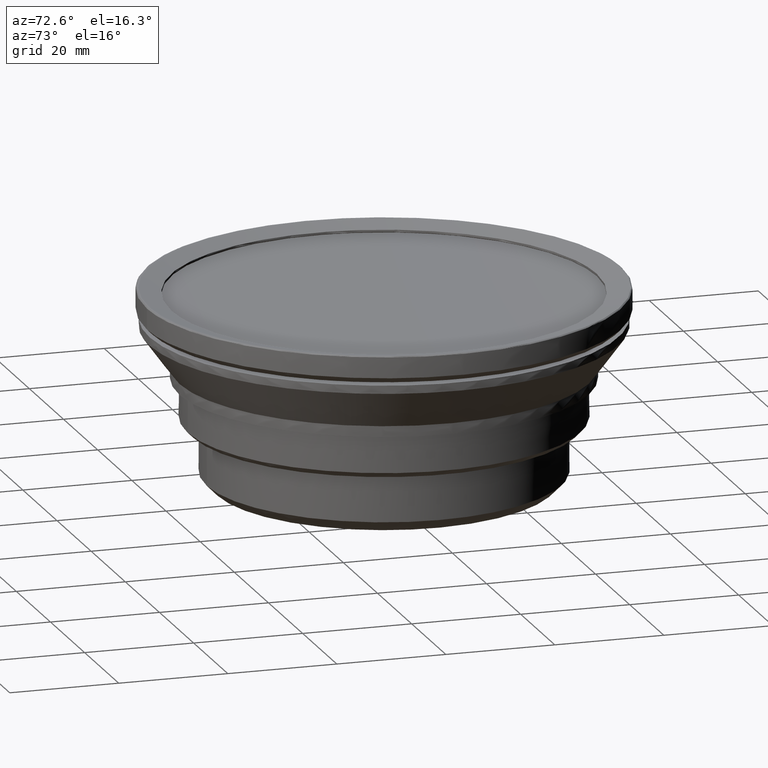
[diagram: clean part render]
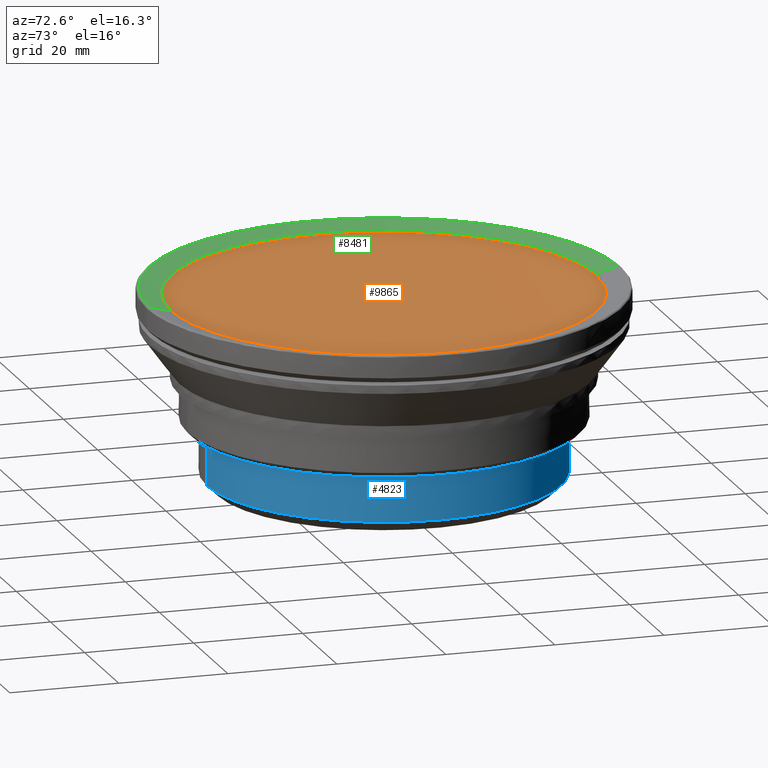
[diagram: same view with three faces highlighted in distinct colors, each labeled with its STEP entity id]
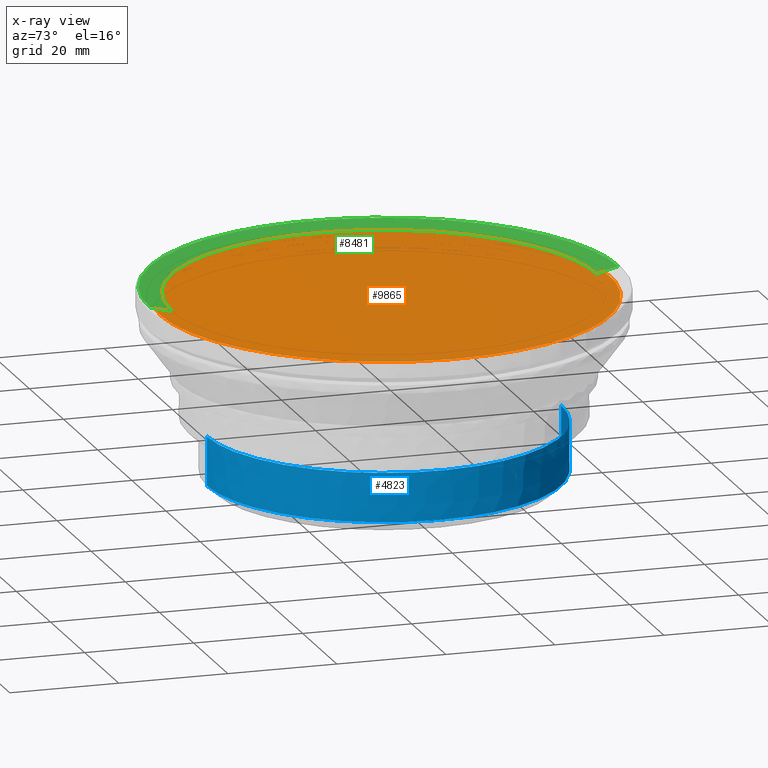
[diagram: x-ray of the same camera — body ghosted, the three highlighted faces saturated]
A machine part, auxiliary view with three faces highlighted in distinct colors.
The next image is the same camera in x-ray (body ghosted, the three faces saturated) — at least one of them is partly hidden behind the body in this view.
Their STEP definitions:

[orange] entity #9865 — the highlighted face is a freeform B-spline surface patch.
#50 = CARTESIAN_POINT ( 'NONE',  ( 30.76901514129435355, -27.18841895865598701, 53.82656779053999685 ) ) ;
#83 = CARTESIAN_POINT ( 'NONE',  ( 22.79313657899829693, -34.11857326369589316, 53.82656779053999685 ) ) ;
#189 = CARTESIAN_POINT ( 'NONE',  ( 34.60675794780898684, -22.19020502219914803, 53.82656779053999685 ) ) ;
#212 = B_SPLINE_CURVE_WITH_KNOTS ( 'NONE', 3,
 ( #10426, #11670, #12693, #11522, #355, #2469, #8157, #2684, #13718, #8303, #8018, #1449, #1379, #9403, #6116, #12764, #4874, #13864 ),
 .UNSPECIFIED., .F., .F.,
 ( 4, 2, 2, 2, 2, 2, 2, 2, 4 ),
 ( 0.000000000000000000, 0.1249999999999999722, 0.2499999999999999445, 0.3749999999999998890, 0.4999999999999998890, 0.6249999999999998890, 0.7499999999999997780, 0.8749999999999998890, 1.000000000000000000 ),
 .UNSPECIFIED. ) ;
#261 = CARTESIAN_POINT ( 'NONE',  ( 34.71158296972780022, 22.62145756266708574, 53.82656779053998264 ) ) ;
#279 = CARTESIAN_POINT ( 'NONE',  ( -4.746460170283159237E-06, -40.99478614046195446, 53.82656779053999685 ) ) ;
#355 = CARTESIAN_POINT ( 'NONE',  ( 16.49843790748052541, 38.15669726416429341, 53.82656779054000395 ) ) ;
#456 = CARTESIAN_POINT ( 'NONE',  ( -32.62914779890632389, 25.55451835437953534, 53.82656779054000395 ) ) ;
#514 = CARTESIAN_POINT ( 'NONE',  ( -10.62403282639644608, -39.65716851187507785, 53.82656779054017449 ) ) ;
#676 = CARTESIAN_POINT ( 'NONE',  ( -38.42477825401626745, 15.39663904086359558, 53.82656779054000395 ) ) ;
#695 = EDGE_CURVE ( 'NONE', #2745, #711, #4837, .T. ) ;
#711 = VERTEX_POINT ( 'NONE', #4632 ) ;
#754 = CARTESIAN_POINT ( 'NONE',  ( 24.09917795596325263, -33.16967251798414651, 53.82651769916909501 ) ) ;
#934 = ORIENTED_EDGE ( 'NONE', *, *, #2680, .T. ) ;
#1084 = CARTESIAN_POINT ( 'NONE',  ( 27.08353393784316054, -30.87987792404358345, 53.82656779053999685 ) ) ;
#1185 = EDGE_CURVE ( 'NONE', #2745, #4150, #10078, .T. ) ;
#1286 = CARTESIAN_POINT ( 'NONE',  ( 39.29142546414301762, -12.33969183123183200, 53.82656779053999685 ) ) ;
#1356 = CARTESIAN_POINT ( 'NONE',  ( 38.46505729415103048, 15.29365754708821967, 53.82656779053998974 ) ) ;
#1379 = CARTESIAN_POINT ( 'NONE',  ( -11.94160513728750850, 39.81871502547285502, 53.82656779054000395 ) ) ;
#1393 = CARTESIAN_POINT ( 'NONE',  ( -4.746460170283159237E-06, -40.99478614046195446, 53.82656779053999685 ) ) ;
#1424 = CARTESIAN_POINT ( 'NONE',  ( 26.71832983949014917, 31.75495485948404806, 53.82650484882209696 ) ) ;
#1449 = CARTESIAN_POINT ( 'NONE',  ( -9.608368097183321410, 40.44515764548852133, 53.82656779053999685 ) ) ;
#1479 = CARTESIAN_POINT ( 'NONE',  ( -34.89083505456193279, 22.36966842421487556, 53.82656779053998974 ) ) ;
#1768 = CARTESIAN_POINT ( 'NONE',  ( -41.26803318072088445, 0.1320643193297101614, 53.82656779054001817 ) ) ;
#2175 = CARTESIAN_POINT ( 'NONE',  ( 31.32099503155227183, -26.57083956019556581, 53.82656779054000395 ) ) ;
#2378 = CARTESIAN_POINT ( 'NONE',  ( 33.26117472437924505, -24.12355954549192916, 53.82656779054000395 ) ) ;
#2469 = CARTESIAN_POINT ( 'NONE',  ( 11.94160313807073592, 39.81870953392401447, 53.82656779053999685 ) ) ;
#2585 = CARTESIAN_POINT ( 'NONE',  ( 36.50807744753923600, 19.57600897534093676, 53.82656779053999685 ) ) ;
#2627 = CARTESIAN_POINT ( 'NONE',  ( -8.532052421285573729, -40.16069909065998900, 53.82656779054008922 ) ) ;
#2641 = CARTESIAN_POINT ( 'NONE',  ( -38.87854818860488137, -13.62291876706323102, 53.82656779053999685 ) ) ;
#2680 = EDGE_CURVE ( 'NONE', #14071, #3978, #11009, .T. ) ;
#2684 = CARTESIAN_POINT ( 'NONE',  ( 4.831873888050529864, 41.28903618630699413, 53.82656779054000395 ) ) ;
#2714 = CARTESIAN_POINT ( 'NONE',  ( -40.20090216818195472, -9.144749678899636081, 53.82656779053999685 ) ) ;
#2745 = VERTEX_POINT ( 'NONE', #754 ) ;
#2785 = CARTESIAN_POINT ( 'NONE',  ( -41.20993764388805403, 2.467847440059192987, 53.82656779053999685 ) ) ;
#2859 = CARTESIAN_POINT ( 'NONE',  ( -41.24405077729769431, 1.689284349313254552, 53.82656779053999685 ) ) ;
#3002 = CARTESIAN_POINT ( 'NONE',  ( -26.63238152425347849, -31.35512526043893899, 53.82656779053999685 ) ) ;
#3103 = FACE_OUTER_BOUND ( 'NONE', #6552, .T. ) ;
#3195 = CARTESIAN_POINT ( 'NONE',  ( 40.96575579409589096, -4.715682453646658168, 53.82656779053999685 ) ) ;
#3811 = CARTESIAN_POINT ( 'NONE',  ( -39.89075038910693394, 10.93707926394320218, 53.82656779054000395 ) ) ;
#3880 = CARTESIAN_POINT ( 'NONE',  ( -32.86433454904939566, 25.24711754455093882, 53.82656779054001106 ) ) ;
#3956 = CARTESIAN_POINT ( 'NONE',  ( -37.17501738668626388, 18.25552880655110499, 53.82656779053999685 ) ) ;
#3978 = VERTEX_POINT ( 'NONE', #4156 ) ;
#4150 = VERTEX_POINT ( 'NONE', #279 ) ;
#4156 = CARTESIAN_POINT ( 'NONE',  ( -24.09672059400854849, -33.16627389058545106, 53.82753289951889997 ) ) ;
#4174 = CARTESIAN_POINT ( 'NONE',  ( -32.96853477949157707, -24.52734086145901315, 53.82656779054001106 ) ) ;
#4362 = CARTESIAN_POINT ( 'NONE',  ( 40.86133172719917894, 6.214337669786536011, 53.82656779053999685 ) ) ;
#4498 = CARTESIAN_POINT ( 'NONE',  ( 41.27119177633078806, 1.535010512785125458, 53.82656779053998974 ) ) ;
#4566 = CARTESIAN_POINT ( 'NONE',  ( 25.32579674011583037, -32.29105785864373956, 53.82656779053998974 ) ) ;
#4632 = CARTESIAN_POINT ( 'NONE',  ( 26.71832983949014917, 31.75495485948404806, 53.82650484882209696 ) ) ;
#4703 = CARTESIAN_POINT ( 'NONE',  ( 34.05191651923081508, 23.59678450763787083, 53.82656779054000395 ) ) ;
#4742 = CARTESIAN_POINT ( 'NONE',  ( -16.74383660257635142, -37.65860330932905953, 53.82656779054029528 ) ) ;
#4816 = CARTESIAN_POINT ( 'NONE',  ( -4.293229102448679058, -40.82682251841941223, 53.82656779054006790 ) ) ;
#4832 = CARTESIAN_POINT ( 'NONE',  ( -36.46743420564787641, 19.65195223537421754, 53.82656779054000395 ) ) ;
#4837 = B_SPLINE_CURVE_WITH_KNOTS ( 'NONE', 3,
 ( #10189, #4566, #1084, #6694, #6556, #11015, #8815, #9020, #12108, #50, #2175, #5458, #12383, #2378, #13480, #11155, #189, #7654, #6831, #5529, #10055, #11288, #1286, #13204, #5732, #8743, #3195, #14376, #5596, #9987, #4498, #14447, #4362, #13276, #12453, #11424, #1356, #9228, #2585, #8064, #261, #4703, #11355, #5805, #10259, #13620, #1424 ),
 .UNSPECIFIED., .F., .F.,
 ( 4, 1, 1, 1, 1, 1, 2, 2, 1, 2, 2, 2, 2, 1, 2, 2, 1, 2, 2, 2, 2, 2, 2, 2, 1, 2, 2, 4 ),
 ( 0.000000000000000000, 0.06249999999999712730, 0.09374999999999569789, 0.1093749999999949762, 0.1171874999999946709, 0.1210937499999945183, 0.1230468749999944766, 0.1249999999999944489, 0.1562499999999946987, 0.1718749999999947820, 0.1874999999999948652, 0.2187499999999950318, 0.2499999999999951705, 0.3124999999999953371, 0.3437499999999954481, 0.3749999999999955591, 0.4374999999999958922, 0.4687499999999960032, 0.4999999999999961142, 0.5624999999999963363, 0.6249999999999965583, 0.6874999999999967804, 0.7499999999999970024, 0.8124999999999973355, 0.8437499999999974465, 0.8593749999999975575, 0.8749999999999977796, 1.000000000000000000 ),
 .UNSPECIFIED. ) ;
#4874 = CARTESIAN_POINT ( 'NONE',  ( -24.86265585061727990, 33.31636021376596091, 53.82656779053998974 ) ) ;
#4904 = CARTESIAN_POINT ( 'NONE',  ( -40.26576762264465259, 9.418759140634820781, 53.82656779053999685 ) ) ;
#4975 = CARTESIAN_POINT ( 'NONE',  ( -29.03850412081694543, 29.66038154957787398, 53.82656779053999685 ) ) ;
#5049 = CARTESIAN_POINT ( 'NONE',  ( -34.02935476362997491, 23.67873146493401748, 53.82656779053999685 ) ) ;
#5123 = CARTESIAN_POINT ( 'NONE',  ( -40.52744860096114365, -7.623268170509639674, 53.82656779054001817 ) ) ;
#5458 = CARTESIAN_POINT ( 'NONE',  ( 32.07519489589020623, -25.67673090409640579, 53.82656779054000395 ) ) ;
#5529 = CARTESIAN_POINT ( 'NONE',  ( 36.96264023627342254, -18.11731143638947472, 53.82656779053999685 ) ) ;
#5596 = CARTESIAN_POINT ( 'NONE',  ( 41.18271257647224814, -2.378635082171363102, 53.82656779053999685 ) ) ;
#5628 = CARTESIAN_POINT ( 'NONE',  ( 5.014816061986943296, -40.79895592669971194, 53.82656779053999685 ) ) ;
#5732 = CARTESIAN_POINT ( 'NONE',  ( 40.15788454173042510, -9.326464312238577747, 53.82656779053999685 ) ) ;
#5805 = CARTESIAN_POINT ( 'NONE',  ( 33.37454739154852490, 24.55848655113810963, 53.82656779053999685 ) ) ;
#5930 = CARTESIAN_POINT ( 'NONE',  ( -40.98631155328924791, -4.536116380028231809, 53.82656779054001106 ) ) ;
#6001 = CARTESIAN_POINT ( 'NONE',  ( -36.68810568161597985, -18.60911377826085555, 53.82656779053999685 ) ) ;
#6116 = CARTESIAN_POINT ( 'NONE',  ( -18.68711644756321633, 37.13386051714407188, 53.82656779053999685 ) ) ;
#6222 = CARTESIAN_POINT ( 'NONE',  ( -40.88761786146384480, -5.312517163813233800, 53.82656779054000395 ) ) ;
#6552 = EDGE_LOOP ( 'NONE', ( #10922, #934, #13770, #8664, #13341 ) ) ;
#6556 = CARTESIAN_POINT ( 'NONE',  ( 29.90794403684508040, -28.12482198612365281, 53.82656779054000395 ) ) ;
#6694 = CARTESIAN_POINT ( 'NONE',  ( 28.99043876546548404, -29.07036358946549726, 53.82656779053999685 ) ) ;
#6831 = CARTESIAN_POINT ( 'NONE',  ( 35.83437651729920503, -20.18022954575119954, 53.82656779053999685 ) ) ;
#7023 = CARTESIAN_POINT ( 'NONE',  ( -30.63889407916643393, 27.94819933798786593, 53.82656779053998264 ) ) ;
#7097 = CARTESIAN_POINT ( 'NONE',  ( -38.00802950023246751, -15.79288577018143158, 53.82656779053999685 ) ) ;
#7242 = CARTESIAN_POINT ( 'NONE',  ( -41.19333772847438979, -2.205434465597222893, 53.82656779053999685 ) ) ;
#7540 = CARTESIAN_POINT ( 'NONE',  ( -32.00976969893456214, -25.74863076584050603, 53.82656779053998974 ) ) ;
#7654 = CARTESIAN_POINT ( 'NONE',  ( 35.43757257181185594, -20.85882551376738903, 53.82656779054000395 ) ) ;
#7827 = CARTESIAN_POINT ( 'NONE',  ( 15.23216568712000019, -38.19134567740000819, 53.82656779053999685 ) ) ;
#8018 = CARTESIAN_POINT ( 'NONE',  ( -4.831874900321857069, 41.28904194178949894, 53.82656779053999685 ) ) ;
#8064 = CARTESIAN_POINT ( 'NONE',  ( 35.32913291091411878, 21.61856113637002608, 53.82656779053999685 ) ) ;
#8157 = CARTESIAN_POINT ( 'NONE',  ( 9.608369111870841195, 40.44516340054419601, 53.82656779053999685 ) ) ;
#8185 = EDGE_CURVE ( 'NONE', #4150, #3978, #11554, .T. ) ;
#8188 = CARTESIAN_POINT ( 'NONE',  ( -41.25796184962553070, -0.6451585011854502616, 53.82656779054001106 ) ) ;
#8303 = CARTESIAN_POINT ( 'NONE',  ( -2.425233386571195027, 41.49999707808787974, 53.82656779054000395 ) ) ;
#8334 = CARTESIAN_POINT ( 'NONE',  ( -40.84106259548499196, 6.350511352648584129, 53.82656779054000395 ) ) ;
#8360 = CARTESIAN_POINT ( 'NONE',  ( 42.92401824781999409, 43.14999999999999858, 53.82656779053999685 ) ) ;
#8664 = ORIENTED_EDGE ( 'NONE', *, *, #1185, .F. ) ;
#8743 = CARTESIAN_POINT ( 'NONE',  ( 40.66085005702726107, -7.036927806837174337, 53.82656779054000395 ) ) ;
#8815 = CARTESIAN_POINT ( 'NONE',  ( 30.58034611556598037, -27.39782259284412191, 53.82656779054001106 ) ) ;
#8917 = CARTESIAN_POINT ( 'NONE',  ( 19.92395318445471730, -35.95468362186290534, 53.82656779054000395 ) ) ;
#9020 = CARTESIAN_POINT ( 'NONE',  ( 30.67528020718226145, -27.29269102303469197, 53.82656779053999685 ) ) ;
#9051 = CARTESIAN_POINT ( 'NONE',  ( 1.614359345709573734, -40.99997512879678396, 53.82656779053999685 ) ) ;
#9198 = CARTESIAN_POINT ( 'NONE',  ( -20.61669220706138361, -35.68124095516967031, 53.82656779054025264 ) ) ;
#9228 = CARTESIAN_POINT ( 'NONE',  ( 37.21300304666395675, 18.17634042802090022, 53.82656779054001106 ) ) ;
#9362 = CARTESIAN_POINT ( 'NONE',  ( -35.57443367553435110, -20.67146091491387239, 53.82656779054001106 ) ) ;
#9403 = CARTESIAN_POINT ( 'NONE',  ( -16.49843590595870779, 38.15669177345624519, 53.82656779053999685 ) ) ;
#9457 = CARTESIAN_POINT ( 'NONE',  ( 42.92401824781999409, -42.64999999999999858, 53.82656779053999685 ) ) ;
#9865 = ADVANCED_FACE ( 'NONE', ( #3103 ), #13322, .F. ) ;
#9987 = CARTESIAN_POINT ( 'NONE',  ( 41.28932569508526029, -0.03080847232725254098, 53.82656779054000395 ) ) ;
#10055 = CARTESIAN_POINT ( 'NONE',  ( 37.96728249656976573, -16.00411975487142158, 53.82656779053999685 ) ) ;
#10078 = B_SPLINE_CURVE_WITH_KNOTS ( 'NONE', 3,
 ( #13376, #83, #8917, #7827, #12483, #5628, #9051, #10087 ),
 .UNSPECIFIED., .F., .F.,
 ( 4, 1, 1, 1, 1, 4 ),
 ( 0.000000000000000000, 0.1879999983678665720, 0.3959999994571092308, 0.6040000005447602183, 0.8120000016324119274, 1.000000000000000000 ),
 .UNSPECIFIED. ) ;
#10087 = CARTESIAN_POINT ( 'NONE',  ( -4.746460170283159237E-06, -40.99478614046195446, 53.82656779053999685 ) ) ;
#10189 = CARTESIAN_POINT ( 'NONE',  ( 24.09917795596325263, -33.16967251798414651, 53.82651769916909501 ) ) ;
#10259 = CARTESIAN_POINT ( 'NONE',  ( 31.26005656955054590, 27.41410513000151283, 53.82656779053999685 ) ) ;
#10426 = CARTESIAN_POINT ( 'NONE',  ( 26.71832983949014917, 31.75495485948404806, 53.82650484882209696 ) ) ;
#10629 = CARTESIAN_POINT ( 'NONE',  ( -42.92209784655999982, -42.64999999999999858, 53.82656779053999685 ) ) ;
#10676 = CARTESIAN_POINT ( 'NONE',  ( -37.69783299243977126, -16.50679688636806119, 53.82656779053999685 ) ) ;
#10922 = ORIENTED_EDGE ( 'NONE', *, *, #12131, .T. ) ;
#11009 = B_SPLINE_CURVE_WITH_KNOTS ( 'NONE', 3,
 ( #11773, #13967, #4975, #7023, #11479, #12795, #456, #3880, #5049, #1479, #4832, #3956, #676, #12868, #3811, #4904, #8334, #12724, #2785, #2859, #1768, #8188, #7242, #11701, #5930, #6222, #5123, #2714, #12653, #2641, #7097, #10676, #11553, #6001, #9362, #13821, #4174, #7540, #11921, #12073, #3002, #11996 ),
 .UNSPECIFIED., .F., .F.,
 ( 4, 2, 1, 2, 2, 2, 2, 2, 2, 2, 2, 2, 2, 2, 2, 2, 2, 2, 1, 2, 2, 4 ),
 ( 0.000000000000000000, 0.06249999999999983347, 0.09374999999999969469, 0.1093749999999996392, 0.1249999999999995837, 0.1874999999999995559, 0.2499999999999995559, 0.3124999999999995559, 0.3749999999999995559, 0.4374999999999995559, 0.4687499999999995004, 0.4999999999999995559, 0.5312499999999995559, 0.5624999999999995559, 0.6249999999999996669, 0.6874999999999996669, 0.7187499999999996669, 0.7499999999999995559, 0.8124999999999995559, 0.8437499999999996669, 0.8749999999999996669, 1.000000000000000000 ),
 .UNSPECIFIED. ) ;
#11015 = CARTESIAN_POINT ( 'NONE',  ( 30.35770988692699390, -27.64185507543948361, 53.82656779053999685 ) ) ;
#11155 = CARTESIAN_POINT ( 'NONE',  ( 34.17204304507730228, -22.84427616662447846, 53.82656779053999685 ) ) ;
#11288 = CARTESIAN_POINT ( 'NONE',  ( 38.78649256884929031, -13.81551771511892746, 53.82656779053998264 ) ) ;
#11355 = CARTESIAN_POINT ( 'NONE',  ( 33.60277966127487304, 24.24087591954588561, 53.82656779053999685 ) ) ;
#11424 = CARTESIAN_POINT ( 'NONE',  ( 39.00656527263083007, 13.82315717171544023, 53.82656779053998264 ) ) ;
#11479 = CARTESIAN_POINT ( 'NONE',  ( -31.41298004778493436, 27.07196798343740696, 53.82656779054001106 ) ) ;
#11522 = CARTESIAN_POINT ( 'NONE',  ( 18.68709898581408879, 37.13386387053541426, 53.82656779053999685 ) ) ;
#11553 = CARTESIAN_POINT ( 'NONE',  ( -37.03739275351714610, -17.91579668236911260, 53.82656779054001106 ) ) ;
#11554 = B_SPLINE_CURVE_WITH_KNOTS ( 'NONE', 3,
 ( #1393, #12710, #4816, #2627, #514, #4742, #9198, #13880 ),
 .UNSPECIFIED., .F., .F.,
 ( 4, 2, 2, 4 ),
 ( 0.000000000000000000, 0.2499999999999999445, 0.4999999999999998890, 1.000000000000000000 ),
 .UNSPECIFIED. ) ;
#11670 = CARTESIAN_POINT ( 'NONE',  ( 24.86263015036188406, 33.31638183782082052, 53.82656779054000395 ) ) ;
#11701 = CARTESIAN_POINT ( 'NONE',  ( -41.13900766920713892, -2.983626041365775805, 53.82656779053999685 ) ) ;
#11773 = CARTESIAN_POINT ( 'NONE',  ( -26.71824947981185261, 31.75486084565024569, 53.82684078147949691 ) ) ;
#11921 = CARTESIAN_POINT ( 'NONE',  ( -31.51325047176885263, -26.34546514310826737, 53.82656779053999685 ) ) ;
#11996 = CARTESIAN_POINT ( 'NONE',  ( -24.09672059400854849, -33.16627389058545106, 53.82753289951889997 ) ) ;
#12073 = CARTESIAN_POINT ( 'NONE',  ( -28.93162485918410098, -29.27573254527623092, 53.82656779054000395 ) ) ;
#12108 = CARTESIAN_POINT ( 'NONE',  ( 30.73846261605016394, -27.22248192757824370, 53.82656779054001106 ) ) ;
#12131 = EDGE_CURVE ( 'NONE', #711, #14071, #212, .T. ) ;
#12383 = CARTESIAN_POINT ( 'NONE',  ( 32.79179596560064169, -24.74927446058826419, 53.82656779054000395 ) ) ;
#12453 = CARTESIAN_POINT ( 'NONE',  ( 39.92223926392175315, 10.81993299623396965, 53.82656779053999685 ) ) ;
#12483 = CARTESIAN_POINT ( 'NONE',  ( 10.12522885193999933, -39.85069004254000191, 53.82656779053999685 ) ) ;
#12653 = CARTESIAN_POINT ( 'NONE',  ( -39.37538816876707415, -12.14805159224696851, 53.82656779054001106 ) ) ;
#12693 = CARTESIAN_POINT ( 'NONE',  ( 22.88528430538247704, 34.70440550930028678, 53.82656779054000395 ) ) ;
#12710 = CARTESIAN_POINT ( 'NONE',  ( -2.146824061205016232, -40.99152887540680723, 53.82656779054003238 ) ) ;
#12724 = CARTESIAN_POINT ( 'NONE',  ( -41.04123244856506858, 4.803395939559512051, 53.82656779053999685 ) ) ;
#12764 = CARTESIAN_POINT ( 'NONE',  ( -22.88526684150969714, 34.70440886392052704, 53.82656779053999685 ) ) ;
#12795 = CARTESIAN_POINT ( 'NONE',  ( -32.14790250056902465, 26.16552625575377533, 53.82656779054000395 ) ) ;
#12868 = CARTESIAN_POINT ( 'NONE',  ( -38.96733604950848928, 13.93486063464370872, 53.82656779053999685 ) ) ;
#12892 = CARTESIAN_POINT ( 'NONE',  ( -42.92209784655999982, 43.14999999999999858, 53.82656779053999685 ) ) ;
#13204 = CARTESIAN_POINT ( 'NONE',  ( 39.52287917428148489, -11.59486158578055637, 53.82656779053998974 ) ) ;
#13220 = CARTESIAN_POINT ( 'NONE',  ( -26.71824947981185261, 31.75486084565024569, 53.82684078147949691 ) ) ;
#13276 = CARTESIAN_POINT ( 'NONE',  ( 40.29306817464890145, 9.298577037524525579, 53.82656779053999685 ) ) ;
#13322 = B_SPLINE_SURFACE_WITH_KNOTS ( 'NONE', 1, 1, ( 
 ( #8360, #12892 ),
 ( #9457, #10629 ) ),
 .UNSPECIFIED., .F., .F., .F.,
 ( 2, 2 ),
 ( 2, 2 ),
 ( -43.14999999999999858, 42.64999999999999858 ),
 ( -42.92401824782000119, 42.92209784655999982 ),
 .UNSPECIFIED. ) ;
#13341 = ORIENTED_EDGE ( 'NONE', *, *, #695, .T. ) ;
#13376 = CARTESIAN_POINT ( 'NONE',  ( 24.09917795596325263, -33.16967251798414651, 53.82651769916909501 ) ) ;
#13480 = CARTESIAN_POINT ( 'NONE',  ( 33.49100930488437911, -23.80795496857663451, 53.82656779053999685 ) ) ;
#13620 = CARTESIAN_POINT ( 'NONE',  ( 29.11964147152315974, 29.70717554164648178, 53.82656779054001106 ) ) ;
#13718 = CARTESIAN_POINT ( 'NONE',  ( 2.425233387798013229, 41.50000292191214157, 53.82656779054000395 ) ) ;
#13770 = ORIENTED_EDGE ( 'NONE', *, *, #8185, .F. ) ;
#13821 = CARTESIAN_POINT ( 'NONE',  ( -34.35260313120141973, -22.65700395820663005, 53.82656779053999685 ) ) ;
#13864 = CARTESIAN_POINT ( 'NONE',  ( -26.71824947981185261, 31.75486084565024569, 53.82684078147949691 ) ) ;
#13880 = CARTESIAN_POINT ( 'NONE',  ( -24.09672059400854849, -33.16627389058545106, 53.82753289951889997 ) ) ;
#13967 = CARTESIAN_POINT ( 'NONE',  ( -27.90887243193494882, 30.73971898884106224, 53.82656779053998974 ) ) ;
#14071 = VERTEX_POINT ( 'NONE', #13220 ) ;
#14376 = CARTESIAN_POINT ( 'NONE',  ( 41.12501300142426430, -3.161139140899840605, 53.82656779054000395 ) ) ;
#14447 = CARTESIAN_POINT ( 'NONE',  ( 41.05691747784177892, 4.661835872092768618, 53.82656779054000395 ) ) ;

[blue] entity #4823 — the highlighted face is a freeform B-spline surface patch.
#39 = CARTESIAN_POINT ( 'NONE',  ( 27.91171790901000094, 16.90393722155000233, 31.20656779053999941 ) ) ;
#110 = CARTESIAN_POINT ( 'NONE',  ( -2.040691884703000003, 32.43586867392000528, 24.96656779054000097 ) ) ;
#140 = CARTESIAN_POINT ( 'NONE',  ( 17.31958849936999911, -27.65572176527000181, 22.02656779053999969 ) ) ;
#177 = CARTESIAN_POINT ( 'NONE',  ( 3.022278568777000185, 32.49112027468000008, 21.84656779053999998 ) ) ;
#206 = CARTESIAN_POINT ( 'NONE',  ( 31.74678835643999975, 7.546424274051000580, 22.02656779053999969 ) ) ;
#248 = CARTESIAN_POINT ( 'NONE',  ( 12.82494975472999954, 30.00546198078999893, 31.20656779053999941 ) ) ;
#320 = CARTESIAN_POINT ( 'NONE',  ( 27.91171790901000094, -16.90393722155000233, 21.84656779053999998 ) ) ;
#389 = CARTESIAN_POINT ( 'NONE',  ( -0.3585284210782999637, -32.54170142849999792, 24.96656779054000097 ) ) ;
#435 = CARTESIAN_POINT ( 'NONE',  ( 2.133997235392912639, -32.50000000000000000, 31.02656779054000324 ) ) ;
#506 = CARTESIAN_POINT ( 'NONE',  ( 2.133963577923777777, 32.50000000000000000, 31.02656779053999614 ) ) ;
#531 = B_SPLINE_SURFACE_WITH_KNOTS ( 'NONE', 3, 3, ( 
 ( #2366, #13536, #110, #8052 ),
 ( #11276, #11210, #9148, #10111 ),
 ( #12510, #7917, #9076, #177 ),
 ( #9008, #12371, #4621, #8943 ),
 ( #248, #1071, #4555, #13401 ),
 ( #8872, #13468, #3461, #5584 ),
 ( #2504, #2230, #12237, #6819 ),
 ( #6682, #11143, #5516, #7983 ),
 ( #39, #10045, #4487, #1274 ),
 ( #3395, #7851, #5720, #6956 ),
 ( #12305, #9973, #12441, #3527 ),
 ( #2301, #3328, #1209, #1344 ),
 ( #6751, #5652, #6886, #13333 ),
 ( #13608, #14434, #11343, #7782 ),
 ( #4420, #5794, #10176, #10247 ),
 ( #3598, #1907, #8471, #320 ),
 ( #10389, #9217, #1834, #5863 ),
 ( #13680, #13079, #10317, #11835 ),
 ( #6212, #14102, #3068, #3669 ),
 ( #14178, #9639, #2848, #11412 ),
 ( #4762, #5112, #10814, #12856 ),
 ( #4089, #2920, #1412, #8121 ),
 ( #5935, #11763, #389, #9714 ),
 ( #4838, #12582, #8545, #9566 ) ),
 .UNSPECIFIED., .F., .F., .F.,
 ( 4, 1, 1, 1, 1, 1, 1, 1, 1, 1, 1, 1, 1, 1, 1, 1, 1, 1, 1, 1, 1, 4 ),
 ( 4, 4 ),
 ( -3.204424506661999850, -3.048840870483999765, -2.893257234306000125, -2.737673598128000041, -2.582089961949999957, -2.426506325772999961, -2.270922689594999877, -2.115339053417000237, -1.959755417238999931, -1.804171781061999935, -1.648588144884000073, -1.493004508705999989, -1.337420872528000126, -1.181837236350000042, -1.026253600173000047, -0.8706699639949000424, -0.7150863278171000204, -0.5595026916392999983, -0.4039190554615000317, -0.2483354192838000130, -0.09275178310597999298, 0.06283185307179998957 ),
 ( 25.31132838953000075, 34.67132838952999663 ),
 .UNSPECIFIED. ) ;
#582 = CARTESIAN_POINT ( 'NONE',  ( 14.40878442330032527, 29.20943613753685142, 31.02656779054000324 ) ) ;
#732 = CARTESIAN_POINT ( 'NONE',  ( 24.48994365414077734, -21.47199247974655734, 31.02656779054000324 ) ) ;
#894 = CARTESIAN_POINT ( 'NONE',  ( 1.626454741318069985E-15, 32.49997695448980295, 31.02656779053999969 ) ) ;
#1071 = CARTESIAN_POINT ( 'NONE',  ( 12.82494975472999954, 30.00546198078999893, 28.08656779053999841 ) ) ;
#1091 = CARTESIAN_POINT ( 'NONE',  ( -6.708162671176243208E-10, -32.49995390897965564, 28.02656779050666813 ) ) ;
#1141 = FACE_OUTER_BOUND ( 'NONE', #12842, .T. ) ;
#1159 = CARTESIAN_POINT ( 'NONE',  ( 4.544945124478959866E-10, -32.49996543169309859, 22.02657931324540286 ) ) ;
#1209 = CARTESIAN_POINT ( 'NONE',  ( 32.53269627084000604, 2.535895034706999951, 24.96656779054000097 ) ) ;
#1274 = CARTESIAN_POINT ( 'NONE',  ( 27.91171790901000094, 16.90393722155000233, 21.84656779053999998 ) ) ;
#1303 = CARTESIAN_POINT ( 'NONE',  ( 4.544945124478959866E-10, -32.49996543169309859, 22.02657931324540286 ) ) ;
#1344 = CARTESIAN_POINT ( 'NONE',  ( 32.53269627084000604, 2.535895034706999951, 21.84656779053999998 ) ) ;
#1373 = CARTESIAN_POINT ( 'NONE',  ( -4.544944063684499968E-10, 32.49996543169304886, 22.02657931324540286 ) ) ;
#1412 = CARTESIAN_POINT ( 'NONE',  ( 3.022278568777000185, -32.49112027468000008, 24.96656779054000097 ) ) ;
#1529 = CARTESIAN_POINT ( 'NONE',  ( 1.626454741318069985E-15, 32.49997695448980295, 31.02656779053999969 ) ) ;
#1602 = CARTESIAN_POINT ( 'NONE',  ( 30.84273347638485774, -10.46563867865567943, 31.02656779054000324 ) ) ;
#1674 = CARTESIAN_POINT ( 'NONE',  ( 29.20943613685805573, -14.40878442505288959, 31.02656779053999969 ) ) ;
#1718 = VERTEX_POINT ( 'NONE', #9131 ) ;
#1834 = CARTESIAN_POINT ( 'NONE',  ( 24.95520101351999998, -21.02486701115000045, 24.96656779054000097 ) ) ;
#1907 = CARTESIAN_POINT ( 'NONE',  ( 27.91171790901000094, -16.90393722155000233, 28.08656779053999841 ) ) ;
#1990 = CARTESIAN_POINT ( 'NONE',  ( 7.511190157744689716E-16, -32.49997695448984558, 31.02656779053999969 ) ) ;
#2230 = CARTESIAN_POINT ( 'NONE',  ( 21.39582936228000065, 24.63788902429999794, 28.08656779053999841 ) ) ;
#2301 = CARTESIAN_POINT ( 'NONE',  ( 32.53269627084000604, 2.535895034706999951, 31.20656779053999941 ) ) ;
#2330 = CARTESIAN_POINT ( 'NONE',  ( 8.020493654210000045, -31.63034595910000490, 22.02656779053999969 ) ) ;
#2366 = CARTESIAN_POINT ( 'NONE',  ( -2.040691884703000003, 32.43586867392000528, 31.20656779053999941 ) ) ;
#2462 = CARTESIAN_POINT ( 'NONE',  ( 31.74678835643999975, -7.546424274051000580, 22.02656779053999969 ) ) ;
#2504 = CARTESIAN_POINT ( 'NONE',  ( 21.39582936228000065, 24.63788902429999794, 31.20656779053999941 ) ) ;
#2693 = CARTESIAN_POINT ( 'NONE',  ( 7.511190157744689716E-16, -32.49997695448984558, 31.02656779053999969 ) ) ;
#2732 = VERTEX_POINT ( 'NONE', #1990 ) ;
#2764 = CARTESIAN_POINT ( 'NONE',  ( 14.40878191165242406, -29.20943007099890210, 31.02656779053998548 ) ) ;
#2837 = CARTESIAN_POINT ( 'NONE',  ( 30.84273954285404784, 10.46564119153630479, 31.02656779053999969 ) ) ;
#2848 = CARTESIAN_POINT ( 'NONE',  ( 12.82494975472999954, -30.00546198078999893, 24.96656779054000097 ) ) ;
#2910 = CARTESIAN_POINT ( 'NONE',  ( 8.433428864614539222, 31.45920268850865753, 31.02656779053999614 ) ) ;
#2920 = CARTESIAN_POINT ( 'NONE',  ( 3.022278568777000185, -32.49112027468000008, 28.08656779053999841 ) ) ;
#3068 = CARTESIAN_POINT ( 'NONE',  ( 17.31958849936999911, -27.65572176527000181, 24.96656779054000097 ) ) ;
#3275 = CARTESIAN_POINT ( 'NONE',  ( -6.708162671176243208E-10, -32.49995390897965564, 25.02656779047333657 ) ) ;
#3328 = CARTESIAN_POINT ( 'NONE',  ( 32.53269627084000604, 2.535895034706999951, 28.08656779053999841 ) ) ;
#3395 = CARTESIAN_POINT ( 'NONE',  ( 30.19395808174999729, 12.37465093042999875, 31.20656779053999941 ) ) ;
#3461 = CARTESIAN_POINT ( 'NONE',  ( 17.31958849936999911, 27.65572176527000181, 24.96656779054000097 ) ) ;
#3527 = CARTESIAN_POINT ( 'NONE',  ( 31.74678835643999975, 7.546424274051000580, 21.84656779053999998 ) ) ;
#3556 = CARTESIAN_POINT ( 'NONE',  ( 12.82494975472999954, 30.00546198078999893, 22.02656779053999969 ) ) ;
#3598 = CARTESIAN_POINT ( 'NONE',  ( 27.91171790901000094, -16.90393722155000233, 31.20656779053999941 ) ) ;
#3669 = CARTESIAN_POINT ( 'NONE',  ( 17.31958849936999911, -27.65572176527000181, 21.84656779053999998 ) ) ;
#3859 = CARTESIAN_POINT ( 'NONE',  ( 24.48994829729413780, 21.47199712284227147, 31.02656779054000324 ) ) ;
#3934 = CARTESIAN_POINT ( 'NONE',  ( 25.83716515959304871, 19.83039832568024252, 31.02656779053999969 ) ) ;
#4089 = CARTESIAN_POINT ( 'NONE',  ( 3.022278568777000185, -32.49112027468000008, 31.20656779053999941 ) ) ;
#4134 = EDGE_CURVE ( 'NONE', #1718, #11011, #7379, .T. ) ;
#4420 = CARTESIAN_POINT ( 'NONE',  ( 30.19395808174999729, -12.37465093042999875, 31.20656779053999941 ) ) ;
#4487 = CARTESIAN_POINT ( 'NONE',  ( 27.91171790901000094, 16.90393722155000233, 24.96656779054000097 ) ) ;
#4555 = CARTESIAN_POINT ( 'NONE',  ( 12.82494975472999954, 30.00546198078999893, 24.96656779054000097 ) ) ;
#4621 = CARTESIAN_POINT ( 'NONE',  ( 8.020493654210000045, 31.63034595910000490, 24.96656779054000097 ) ) ;
#4650 = CARTESIAN_POINT ( 'NONE',  ( 17.31958849936999911, 27.65572176527000181, 22.02656779053999969 ) ) ;
#4762 = CARTESIAN_POINT ( 'NONE',  ( 8.020493654210000045, -31.63034595910000490, 31.20656779053999941 ) ) ;
#4794 = CARTESIAN_POINT ( 'NONE',  ( 32.53269627084000604, -2.535895034706999951, 22.02656779053999969 ) ) ;
#4823 = ADVANCED_FACE ( 'NONE', ( #1141 ), #531, .T. ) ;
#4838 = CARTESIAN_POINT ( 'NONE',  ( -2.040691884703000003, -32.43586867392000528, 31.20656779053999941 ) ) ;
#5112 = CARTESIAN_POINT ( 'NONE',  ( 8.020493654210000045, -31.63034595910000490, 28.08656779053999841 ) ) ;
#5176 = CARTESIAN_POINT ( 'NONE',  ( 32.29184382086145177, -4.247425559064253342, 31.02656779054001035 ) ) ;
#5516 = CARTESIAN_POINT ( 'NONE',  ( 24.95520101351999998, 21.02486701115000045, 24.96656779054000097 ) ) ;
#5584 = CARTESIAN_POINT ( 'NONE',  ( 17.31958849936999911, 27.65572176527000181, 21.84656779053999998 ) ) ;
#5652 = CARTESIAN_POINT ( 'NONE',  ( 32.53269627084000604, -2.535895034706999951, 28.08656779053999841 ) ) ;
#5681 = CARTESIAN_POINT ( 'NONE',  ( 1.004812335980945326, -32.49993928482934535, 22.02656779053999969 ) ) ;
#5720 = CARTESIAN_POINT ( 'NONE',  ( 30.19395808174999729, 12.37465093042999875, 24.96656779054000097 ) ) ;
#5750 = CARTESIAN_POINT ( 'NONE',  ( 12.82494975472999954, -30.00546198078999893, 22.02656779053999969 ) ) ;
#5794 = CARTESIAN_POINT ( 'NONE',  ( 30.19395808174999729, -12.37465093042999875, 28.08656779053999841 ) ) ;
#5863 = CARTESIAN_POINT ( 'NONE',  ( 24.95520101351999998, -21.02486701115000045, 21.84656779053999998 ) ) ;
#5895 = CARTESIAN_POINT ( 'NONE',  ( 24.95520101351999998, 21.02486701115000045, 22.02656779053999969 ) ) ;
#5935 = CARTESIAN_POINT ( 'NONE',  ( -0.3585284210782999637, -32.54170142849999792, 31.20656779053999941 ) ) ;
#6050 = ORIENTED_EDGE ( 'NONE', *, *, #4134, .T. ) ;
#6053 = CARTESIAN_POINT ( 'NONE',  ( 28.20835964006565177, 16.28166682060397008, 31.02656779053999614 ) ) ;
#6125 = CARTESIAN_POINT ( 'NONE',  ( 21.47199247982466019, 24.48994365429014408, 31.02656779053999969 ) ) ;
#6212 = CARTESIAN_POINT ( 'NONE',  ( 17.31958849936999911, -27.65572176527000181, 31.20656779053999941 ) ) ;
#6563 = CARTESIAN_POINT ( 'NONE',  ( 7.511190157744689716E-16, -32.49997695448984558, 31.02656779053999969 ) ) ;
#6623 = VERTEX_POINT ( 'NONE', #894 ) ;
#6682 = CARTESIAN_POINT ( 'NONE',  ( 24.95520101351999998, 21.02486701115000045, 31.20656779053999941 ) ) ;
#6751 = CARTESIAN_POINT ( 'NONE',  ( 32.53269627084000604, -2.535895034706999951, 31.20656779053999941 ) ) ;
#6781 = CARTESIAN_POINT ( 'NONE',  ( 24.95520101351999998, -21.02486701115000045, 22.02656779053999969 ) ) ;
#6819 = CARTESIAN_POINT ( 'NONE',  ( 21.39582936228000065, 24.63788902429999794, 21.84656779053999998 ) ) ;
#6886 = CARTESIAN_POINT ( 'NONE',  ( 32.53269627084000604, -2.535895034706999951, 24.96656779054000097 ) ) ;
#6956 = CARTESIAN_POINT ( 'NONE',  ( 30.19395808174999729, 12.37465093042999875, 21.84656779053999998 ) ) ;
#6968 = CARTESIAN_POINT ( 'NONE',  ( -1.589515303233868249E-09, 32.49995390897967695, 28.02656779050666813 ) ) ;
#7075 = CARTESIAN_POINT ( 'NONE',  ( 4.247442066431442953, 32.29184053770172369, 31.02656779053998903 ) ) ;
#7128 = ORIENTED_EDGE ( 'NONE', *, *, #9103, .T. ) ;
#7149 = CARTESIAN_POINT ( 'NONE',  ( 19.83039832713056683, -25.83716515837105021, 31.02656779053998903 ) ) ;
#7285 = B_SPLINE_CURVE_WITH_KNOTS ( 'NONE', 3,
 ( #6563, #1091, #3275, #1159 ),
 .UNSPECIFIED., .F., .F.,
 ( 4, 4 ),
 ( 0.000000000000000000, 1.000000000000000000 ),
 .UNSPECIFIED. ) ;
#7368 = CARTESIAN_POINT ( 'NONE',  ( 32.49999671673837298, 2.134013738889359413, 31.02656779053999614 ) ) ;
#7379 = B_SPLINE_CURVE_WITH_KNOTS ( 'NONE', 3,
 ( #1303, #5681, #12541, #2330, #5750, #140, #13784, #6781, #8080, #10206, #2462, #4794, #11240, #206, #13712, #10420, #5895, #13566, #4650, #3556, #8011, #12469, #11371, #1373 ),
 .UNSPECIFIED., .F., .F.,
 ( 4, 1, 1, 1, 1, 1, 1, 1, 1, 1, 1, 1, 1, 1, 1, 1, 1, 1, 1, 1, 1, 4 ),
 ( 0.000000000000000000, 0.02952382314295797991, 0.07904763123319000218, 0.1285714393233838293, 0.1780952474136094643, 0.2276190555038350993, 0.2771428635940607621, 0.3266666716843819041, 0.3761904797743529372, 0.4257142878646422712, 0.4752380959549315498, 0.5247619040452208283, 0.5742857121355101624, 0.6238095202254810845, 0.6733333283157706406, 0.7228571364060598636, 0.7723809444963491977, 0.8219047525863201198, 0.8714285606766094539, 0.9209523687668987879, 0.9704761768571880109, 1.000000000000000000 ),
 .UNSPECIFIED. ) ;
#7537 = B_SPLINE_CURVE_WITH_KNOTS ( 'NONE', 3,
 ( #2693, #435, #8460, #12703, #9556, #2764, #11825, #7149, #11678, #732, #14091, #8311, #1674, #1602, #13799, #5176, #14018, #7368, #8239, #12631, #2837, #12772, #6053, #3934, #3859, #6125, #10582, #13873, #582, #10509, #2910, #7075, #506, #1529 ),
 .UNSPECIFIED., .F., .F.,
 ( 4, 2, 2, 2, 2, 2, 2, 2, 2, 2, 2, 2, 2, 2, 2, 2, 4 ),
 ( 0.000000000000000000, 0.06249999999999994449, 0.1249999999999999167, 0.1874999999999998890, 0.2499999999999998890, 0.3124999999999998335, 0.3749999999999997780, 0.4374999999999997224, 0.4999999999999996669, 0.5624999999999995559, 0.6249999999999995559, 0.6874999999999995559, 0.7499999999999996669, 0.8124999999999996669, 0.8749999999999997780, 0.9374999999999997780, 1.000000000000000000 ),
 .UNSPECIFIED. ) ;
#7782 = CARTESIAN_POINT ( 'NONE',  ( 31.74678835643999975, -7.546424274051000580, 21.84656779053999998 ) ) ;
#7851 = CARTESIAN_POINT ( 'NONE',  ( 30.19395808174999729, 12.37465093042999875, 28.08656779053999841 ) ) ;
#7917 = CARTESIAN_POINT ( 'NONE',  ( 3.022278568777000185, 32.49112027468000008, 28.08656779053999841 ) ) ;
#7983 = CARTESIAN_POINT ( 'NONE',  ( 24.95520101351999998, 21.02486701115000045, 21.84656779053999998 ) ) ;
#8011 = CARTESIAN_POINT ( 'NONE',  ( 8.020493654210000045, 31.63034595910000490, 22.02656779053999969 ) ) ;
#8052 = CARTESIAN_POINT ( 'NONE',  ( -2.040691884703000003, 32.43586867392000528, 21.84656779053999998 ) ) ;
#8080 = CARTESIAN_POINT ( 'NONE',  ( 27.91171790901000094, -16.90393722155000233, 22.02656779053999969 ) ) ;
#8121 = CARTESIAN_POINT ( 'NONE',  ( 3.022278568777000185, -32.49112027468000008, 21.84656779053999998 ) ) ;
#8239 = CARTESIAN_POINT ( 'NONE',  ( 32.29185026041141526, 4.247426842486386356, 31.02656779053999614 ) ) ;
#8311 = CARTESIAN_POINT ( 'NONE',  ( 28.20835418047634846, -16.28166317247558936, 31.02656779054001035 ) ) ;
#8460 = CARTESIAN_POINT ( 'NONE',  ( 4.247426842082851373, -32.29185026097671596, 31.02656779054000324 ) ) ;
#8471 = CARTESIAN_POINT ( 'NONE',  ( 27.91171790901000094, -16.90393722155000233, 24.96656779054000097 ) ) ;
#8545 = CARTESIAN_POINT ( 'NONE',  ( -2.040691884703000003, -32.43586867392000528, 24.96656779054000097 ) ) ;
#8872 = CARTESIAN_POINT ( 'NONE',  ( 17.31958849936999911, 27.65572176527000181, 31.20656779053999941 ) ) ;
#8943 = CARTESIAN_POINT ( 'NONE',  ( 8.020493654210000045, 31.63034595910000490, 21.84656779053999998 ) ) ;
#9008 = CARTESIAN_POINT ( 'NONE',  ( 8.020493654210000045, 31.63034595910000490, 31.20656779053999941 ) ) ;
#9019 = CARTESIAN_POINT ( 'NONE',  ( -1.589515303233868249E-09, 32.49995390897967695, 25.02656779047334012 ) ) ;
#9076 = CARTESIAN_POINT ( 'NONE',  ( 3.022278568777000185, 32.49112027468000008, 24.96656779054000097 ) ) ;
#9087 = CARTESIAN_POINT ( 'NONE',  ( -4.544944063684499968E-10, 32.49996543169304886, 22.02657931324540286 ) ) ;
#9103 = EDGE_CURVE ( 'NONE', #2732, #1718, #7285, .T. ) ;
#9131 = CARTESIAN_POINT ( 'NONE',  ( 4.544945124478959866E-10, -32.49996543169309859, 22.02657931324540286 ) ) ;
#9148 = CARTESIAN_POINT ( 'NONE',  ( -0.3585284210782999637, 32.54170142849999792, 24.96656779054000097 ) ) ;
#9217 = CARTESIAN_POINT ( 'NONE',  ( 24.95520101351999998, -21.02486701115000045, 28.08656779053999841 ) ) ;
#9556 = CARTESIAN_POINT ( 'NONE',  ( 10.46564119210956179, -30.84273954222176428, 31.02656779053998903 ) ) ;
#9566 = CARTESIAN_POINT ( 'NONE',  ( -2.040691884703000003, -32.43586867392000528, 21.84656779053999998 ) ) ;
#9639 = CARTESIAN_POINT ( 'NONE',  ( 12.82494975472999954, -30.00546198078999893, 28.08656779053999841 ) ) ;
#9714 = CARTESIAN_POINT ( 'NONE',  ( -0.3585284210782999637, -32.54170142849999792, 21.84656779053999998 ) ) ;
#9973 = CARTESIAN_POINT ( 'NONE',  ( 31.74678835643999975, 7.546424274051000580, 28.08656779053999841 ) ) ;
#10045 = CARTESIAN_POINT ( 'NONE',  ( 27.91171790901000094, 16.90393722155000233, 28.08656779053999841 ) ) ;
#10111 = CARTESIAN_POINT ( 'NONE',  ( -0.3585284210782999637, 32.54170142849999792, 21.84656779053999998 ) ) ;
#10176 = CARTESIAN_POINT ( 'NONE',  ( 30.19395808174999729, -12.37465093042999875, 24.96656779054000097 ) ) ;
#10206 = CARTESIAN_POINT ( 'NONE',  ( 30.19395808174999729, -12.37465093042999875, 22.02656779053999969 ) ) ;
#10247 = CARTESIAN_POINT ( 'NONE',  ( 30.19395808174999729, -12.37465093042999875, 21.84656779053999998 ) ) ;
#10317 = CARTESIAN_POINT ( 'NONE',  ( 21.39582936228000065, -24.63788902429999794, 24.96656779054000097 ) ) ;
#10389 = CARTESIAN_POINT ( 'NONE',  ( 24.95520101351999998, -21.02486701115000045, 31.20656779053999941 ) ) ;
#10420 = CARTESIAN_POINT ( 'NONE',  ( 27.91171790901000094, 16.90393722155000233, 22.02656779053999969 ) ) ;
#10509 = CARTESIAN_POINT ( 'NONE',  ( 10.46563868042607837, 30.84273347569866175, 31.02656779053999969 ) ) ;
#10582 = CARTESIAN_POINT ( 'NONE',  ( 19.83040197440089258, 25.83717061898896361, 31.02656779054000680 ) ) ;
#10814 = CARTESIAN_POINT ( 'NONE',  ( 8.020493654210000045, -31.63034595910000490, 24.96656779054000097 ) ) ;
#11011 = VERTEX_POINT ( 'NONE', #14061 ) ;
#11143 = CARTESIAN_POINT ( 'NONE',  ( 24.95520101351999998, 21.02486701115000045, 28.08656779053999841 ) ) ;
#11210 = CARTESIAN_POINT ( 'NONE',  ( -0.3585284210782999637, 32.54170142849999792, 28.08656779053999841 ) ) ;
#11240 = CARTESIAN_POINT ( 'NONE',  ( 32.53269627084000604, 2.535895034706999951, 22.02656779053999969 ) ) ;
#11276 = CARTESIAN_POINT ( 'NONE',  ( -0.3585284210782999637, 32.54170142849999792, 31.20656779053999941 ) ) ;
#11343 = CARTESIAN_POINT ( 'NONE',  ( 31.74678835643999975, -7.546424274051000580, 24.96656779054000097 ) ) ;
#11371 = CARTESIAN_POINT ( 'NONE',  ( 1.004812335993874761, 32.49993928482874850, 22.02656779053999614 ) ) ;
#11412 = CARTESIAN_POINT ( 'NONE',  ( 12.82494975472999954, -30.00546198078999893, 21.84656779053999998 ) ) ;
#11678 = CARTESIAN_POINT ( 'NONE',  ( 21.47199712300524155, -24.48994829735854495, 31.02656779053999969 ) ) ;
#11763 = CARTESIAN_POINT ( 'NONE',  ( -0.3585284210782999637, -32.54170142849999792, 28.08656779053999841 ) ) ;
#11825 = CARTESIAN_POINT ( 'NONE',  ( 16.28166681916962588, -28.20835964127704187, 31.02656779053998548 ) ) ;
#11835 = CARTESIAN_POINT ( 'NONE',  ( 21.39582936228000065, -24.63788902429999794, 21.84656779053999998 ) ) ;
#12237 = CARTESIAN_POINT ( 'NONE',  ( 21.39582936228000065, 24.63788902429999794, 24.96656779054000097 ) ) ;
#12305 = CARTESIAN_POINT ( 'NONE',  ( 31.74678835643999975, 7.546424274051000580, 31.20656779053999941 ) ) ;
#12371 = CARTESIAN_POINT ( 'NONE',  ( 8.020493654210000045, 31.63034595910000490, 28.08656779053999841 ) ) ;
#12382 = CARTESIAN_POINT ( 'NONE',  ( 1.626454741318069985E-15, 32.49997695448980295, 31.02656779053999969 ) ) ;
#12441 = CARTESIAN_POINT ( 'NONE',  ( 31.74678835643999975, 7.546424274051000580, 24.96656779054000097 ) ) ;
#12469 = CARTESIAN_POINT ( 'NONE',  ( 3.695114727974508906, 32.37524689297647740, 22.02656779053999969 ) ) ;
#12510 = CARTESIAN_POINT ( 'NONE',  ( 3.022278568777000185, 32.49112027468000008, 31.20656779053999941 ) ) ;
#12541 = CARTESIAN_POINT ( 'NONE',  ( 3.695114727968249468, -32.37524689297755032, 22.02656779053999969 ) ) ;
#12582 = CARTESIAN_POINT ( 'NONE',  ( -2.040691884703000003, -32.43586867392000528, 28.08656779053999841 ) ) ;
#12631 = CARTESIAN_POINT ( 'NONE',  ( 31.45919296579529600, 8.433444088578504250, 31.02656779054000324 ) ) ;
#12703 = CARTESIAN_POINT ( 'NONE',  ( 8.433444089000959210, -31.45919296522617969, 31.02656779053999614 ) ) ;
#12772 = CARTESIAN_POINT ( 'NONE',  ( 29.20943007037404726, 14.40878191220789617, 31.02656779053999969 ) ) ;
#12825 = ORIENTED_EDGE ( 'NONE', *, *, #14394, .T. ) ;
#12842 = EDGE_LOOP ( 'NONE', ( #13870, #7128, #6050, #12825 ) ) ;
#12856 = CARTESIAN_POINT ( 'NONE',  ( 8.020493654210000045, -31.63034595910000490, 21.84656779053999998 ) ) ;
#13079 = CARTESIAN_POINT ( 'NONE',  ( 21.39582936228000065, -24.63788902429999794, 28.08656779053999841 ) ) ;
#13167 = EDGE_CURVE ( 'NONE', #2732, #6623, #7537, .T. ) ;
#13333 = CARTESIAN_POINT ( 'NONE',  ( 32.53269627084000604, -2.535895034706999951, 21.84656779053999998 ) ) ;
#13401 = CARTESIAN_POINT ( 'NONE',  ( 12.82494975472999954, 30.00546198078999893, 21.84656779053999998 ) ) ;
#13468 = CARTESIAN_POINT ( 'NONE',  ( 17.31958849936999911, 27.65572176527000181, 28.08656779053999841 ) ) ;
#13536 = CARTESIAN_POINT ( 'NONE',  ( -2.040691884703000003, 32.43586867392000528, 28.08656779053999841 ) ) ;
#13566 = CARTESIAN_POINT ( 'NONE',  ( 21.39582936228000065, 24.63788902429999794, 22.02656779053999969 ) ) ;
#13608 = CARTESIAN_POINT ( 'NONE',  ( 31.74678835643999975, -7.546424274051000580, 31.20656779053999941 ) ) ;
#13680 = CARTESIAN_POINT ( 'NONE',  ( 21.39582936228000065, -24.63788902429999794, 31.20656779053999941 ) ) ;
#13712 = CARTESIAN_POINT ( 'NONE',  ( 30.19395808174999729, 12.37465093042999875, 22.02656779053999969 ) ) ;
#13784 = CARTESIAN_POINT ( 'NONE',  ( 21.39582936228000065, -24.63788902429999794, 22.02656779053999969 ) ) ;
#13799 = CARTESIAN_POINT ( 'NONE',  ( 31.45919940535278769, -8.433445371962831061, 31.02656779053999969 ) ) ;
#13870 = ORIENTED_EDGE ( 'NONE', *, *, #13167, .F. ) ;
#13873 = CARTESIAN_POINT ( 'NONE',  ( 16.28166317186722267, 28.20835418068056200, 31.02656779054000680 ) ) ;
#14018 = CARTESIAN_POINT ( 'NONE',  ( 32.50000328326164123, -2.134013738870071730, 31.02656779053999969 ) ) ;
#14061 = CARTESIAN_POINT ( 'NONE',  ( -4.544944063684499968E-10, 32.49996543169304886, 22.02657931324540286 ) ) ;
#14091 = CARTESIAN_POINT ( 'NONE',  ( 25.83717061920388147, -19.83040197377652447, 31.02656779053999969 ) ) ;
#14102 = CARTESIAN_POINT ( 'NONE',  ( 17.31958849936999911, -27.65572176527000181, 28.08656779053999841 ) ) ;
#14178 = CARTESIAN_POINT ( 'NONE',  ( 12.82494975472999954, -30.00546198078999893, 31.20656779053999941 ) ) ;
#14350 = B_SPLINE_CURVE_WITH_KNOTS ( 'NONE', 3,
 ( #9087, #9019, #6968, #12382 ),
 .UNSPECIFIED., .F., .F.,
 ( 4, 4 ),
 ( 0.000000000000000000, 1.000000000000000000 ),
 .UNSPECIFIED. ) ;
#14394 = EDGE_CURVE ( 'NONE', #11011, #6623, #14350, .T. ) ;
#14434 = CARTESIAN_POINT ( 'NONE',  ( 31.74678835643999975, -7.546424274051000580, 28.08656779053999841 ) ) ;

[green] entity #8481 — the highlighted face is a freeform B-spline surface patch.
#51 = CARTESIAN_POINT ( 'NONE',  ( -40.80730576565238010, -13.84685537626262430, 55.51450328701999126 ) ) ;
#190 = CARTESIAN_POINT ( 'NONE',  ( -13.84685537841577663, 40.80730576500269535, 55.51450328702000547 ) ) ;
#193 = FACE_OUTER_BOUND ( 'NONE', #12753, .T. ) ;
#332 = CARTESIAN_POINT ( 'NONE',  ( -2.823437058981436376, -43.00000000000000000, 55.51450328701999837 ) ) ;
#335 = CARTESIAN_POINT ( 'NONE',  ( -41.49582417895999953, 16.42935910454999870, 55.80513216922999931 ) ) ;
#404 = CARTESIAN_POINT ( 'NONE',  ( -8.362769605860000510, -43.83937174084999100, 55.80513216922999931 ) ) ;
#475 = CARTESIAN_POINT ( 'NONE',  ( -24.37376688660999946, 29.46282566058999919, 54.22387440480999743 ) ) ;
#760 = CARTESIAN_POINT ( 'NONE',  ( -8.168218914912781514, -38.46043427424017125, 54.51455720443579622 ) ) ;
#1070 = EDGE_CURVE ( 'NONE', #2023, #5592, #8144, .T. ) ;
#1176 = CARTESIAN_POINT ( 'NONE',  ( 2.238469987681605116E-15, 42.99999256903044653, 55.51453301072360347 ) ) ;
#1184 = CARTESIAN_POINT ( 'NONE',  ( 2.238469987681605116E-15, 42.99999256903044653, 55.51453301072360347 ) ) ;
#1227 = CARTESIAN_POINT ( 'NONE',  ( -1.740305875586991236E-09, -40.33331939306482639, 54.84789238109878085 ) ) ;
#1357 = CARTESIAN_POINT ( 'NONE',  ( -21.54190600384045240, -37.32182281362528187, 55.51450328701999837 ) ) ;
#1360 = CARTESIAN_POINT ( 'NONE',  ( -7.165039430121999509, -37.56062188952999747, 54.22387440480999743 ) ) ;
#1426 = CARTESIAN_POINT ( 'NONE',  ( -5.619682789586688543, -42.72459874299335780, 55.51450328702001968 ) ) ;
#1429 = CARTESIAN_POINT ( 'NONE',  ( -44.27797224805000553, -5.593608712277999828, 55.80513216922999931 ) ) ;
#1499 = CARTESIAN_POINT ( 'NONE',  ( -30.93512991559000014, 22.47568707510000152, 54.22387440480999743 ) ) ;
#1570 = CARTESIAN_POINT ( 'NONE',  ( -18.09530424357999934, 38.45445880591000076, 55.27804624775999542 ) ) ;
#1630 = CARTESIAN_POINT ( 'NONE',  ( -16.78123090245091831, 35.66191227094315508, 54.51455720443580333 ) ) ;
#1966 = VERTEX_POINT ( 'NONE', #5687 ) ;
#2023 = VERTEX_POINT ( 'NONE', #1176 ) ;
#2313 = CARTESIAN_POINT ( 'NONE',  ( -38.64633403033050030, -19.06391980710568390, 55.51450328701998416 ) ) ;
#2379 = CARTESIAN_POINT ( 'NONE',  ( -28.40910610692908378, 32.40207243169989226, 55.51450328702001258 ) ) ;
#2446 = CARTESIAN_POINT ( 'NONE',  ( -11.15808490384727314, -41.62293537167514756, 55.51450328702001258 ) ) ;
#2449 = CARTESIAN_POINT ( 'NONE',  ( -37.53375553992000135, -14.86066515147000011, 54.75096032627999421 ) ) ;
#2520 = CARTESIAN_POINT ( 'NONE',  ( -37.93640528143000523, -4.792482499106999860, 54.22387440480999743 ) ) ;
#2586 = CARTESIAN_POINT ( 'NONE',  ( -2.823403402191040801, 43.00000000000000000, 55.51450328701999837 ) ) ;
#2661 = CARTESIAN_POINT ( 'NONE',  ( -25.73189833310999930, -31.10452471428000010, 54.75096032627999421 ) ) ;
#2865 = CARTESIAN_POINT ( 'NONE',  ( -25.12276327419458610, 30.36820684728009212, 54.51455720443580333 ) ) ;
#3026 = CARTESIAN_POINT ( 'NONE',  ( 2.375835307626000148, 37.76282083870000150, 54.22387440480999743 ) ) ;
#3347 = CARTESIAN_POINT ( 'NONE',  ( -5.662390664926919506E-16, -42.99999256903044653, 55.51453301072360347 ) ) ;
#3407 = CARTESIAN_POINT ( 'NONE',  ( -34.18456930511642611, -26.23713768205606556, 55.51450328701998416 ) ) ;
#3474 = CARTESIAN_POINT ( 'NONE',  ( -40.80731183164874665, 13.84685789089487784, 55.51450328701999837 ) ) ;
#3540 = CARTESIAN_POINT ( 'NONE',  ( -11.15806967562886420, 41.62294509556542721, 55.51450328701999837 ) ) ;
#3543 = CARTESIAN_POINT ( 'NONE',  ( -30.93512991559000014, -22.47568707510000152, 54.22387440480999743 ) ) ;
#3680 = CARTESIAN_POINT ( 'NONE',  ( -38.64632796431462225, 19.06391729252053935, 55.51450328702000547 ) ) ;
#3684 = CARTESIAN_POINT ( 'NONE',  ( -35.55272122040999960, 14.07631817492999993, 54.22387440480999743 ) ) ;
#3758 = CARTESIAN_POINT ( 'NONE',  ( 2.508219303009999734, -39.86700418993999762, 54.75096032627999421 ) ) ;
#3830 = CARTESIAN_POINT ( 'NONE',  ( -28.44816122611999631, -34.38792282165000103, 55.80513216922999931 ) ) ;
#3977 = CARTESIAN_POINT ( 'NONE',  ( -0.8316710298898999376, 40.07713227889999530, 54.75096032627999421 ) ) ;
#4106 = CARTESIAN_POINT ( 'NONE',  ( -2.450459542001890867, -38.99968061164619826, 54.51455720443580333 ) ) ;
#4499 = CARTESIAN_POINT ( 'NONE',  ( -13.84685788650029536, -40.80731183378716054, 55.51450328702001258 ) ) ;
#4636 = CARTESIAN_POINT ( 'NONE',  ( -7.564282822033999487, -39.65353850663000657, 54.75096032627999421 ) ) ;
#4637 = EDGE_CURVE ( 'NONE', #1966, #2023, #13131, .T. ) ;
#4704 = CARTESIAN_POINT ( 'NONE',  ( -32.40207242807125709, -28.40910611125982754, 55.51450328701998416 ) ) ;
#4708 = CARTESIAN_POINT ( 'NONE',  ( -17.18811433175000047, -36.52658311926000323, 54.75096032627999421 ) ) ;
#4779 = CARTESIAN_POINT ( 'NONE',  ( -39.51478985944000044, 15.64501212800999852, 55.27804624775999542 ) ) ;
#4853 = CARTESIAN_POINT ( 'NONE',  ( -25.73189833310999930, 31.10452471428000010, 54.75096032627999421 ) ) ;
#4923 = CARTESIAN_POINT ( 'NONE',  ( -16.28092441992000161, 34.59870743260999859, 54.22387440480999743 ) ) ;
#4996 = CARTESIAN_POINT ( 'NONE',  ( 2.772987293777999795, 44.07537089242000405, 55.80513216922999931 ) ) ;
#5054 = CARTESIAN_POINT ( 'NONE',  ( 3.752128238461795204E-16, 38.99987868636844723, 54.51453024572739992 ) ) ;
#5098 = VERTEX_POINT ( 'NONE', #6994 ) ;
#5220 = CARTESIAN_POINT ( 'NONE',  ( 2.508219303009999734, 39.86700418993999762, 54.75096032627999421 ) ) ;
#5295 = CARTESIAN_POINT ( 'NONE',  ( -0.8755666867208999893, 42.19240620579999757, 55.27804624775999542 ) ) ;
#5506 = B_SPLINE_SURFACE_WITH_KNOTS ( 'NONE', 3, 3, ( 
 ( #10263, #5736, #3758, #11573 ),
 ( #9232, #8208, #6973, #13844 ),
 ( #404, #10193, #4636, #1360 ),
 ( #11292, #12599, #4708, #11428 ),
 ( #3830, #9092, #2661, #5879 ),
 ( #9164, #6835, #13552, #3543 ),
 ( #7998, #12457, #2449, #10478 ),
 ( #1429, #13697, #12527, #2520 ),
 ( #6903, #11359, #13624, #10334 ),
 ( #335, #4779, #7118, #3684 ),
 ( #8135, #7045, #11499, #1499 ),
 ( #5949, #10404, #4853, #475 ),
 ( #9310, #1570, #6022, #4923 ),
 ( #9382, #9746, #7486, #12816 ),
 ( #6393, #5295, #3977, #7337 ),
 ( #4996, #10845, #5220, #3026 ) ),
 .UNSPECIFIED., .F., .F., .F.,
 ( 4, 1, 1, 1, 1, 1, 1, 1, 1, 1, 1, 1, 1, 4 ),
 ( 4, 4 ),
 ( -6.346017160250999822, -6.094689747963999871, -5.843362335676999919, -5.592034923389999967, -5.340707511103000016, -5.089380098814999975, -4.838052686528000024, -4.586725274241000072, -4.335397861953999232, -4.084070449666999281, -3.832743037380000217, -3.581415625092000177, -3.330088212804999781, -3.078760800517999829 ),
 ( -11.04062888220999916, -9.459371117787998884 ),
 .UNSPECIFIED. ) ;
#5592 = VERTEX_POINT ( 'NONE', #8039 ) ;
#5664 = CARTESIAN_POINT ( 'NONE',  ( -41.62294181232557833, -11.15808618279891995, 55.51450328701999126 ) ) ;
#5687 = CARTESIAN_POINT ( 'NONE',  ( -5.662390664926919506E-16, -42.99999256903044653, 55.51453301072360347 ) ) ;
#5733 = CARTESIAN_POINT ( 'NONE',  ( -5.662390664926919506E-16, -42.99999256903044653, 55.51453301072360347 ) ) ;
#5736 = CARTESIAN_POINT ( 'NONE',  ( 2.640603298394000209, -41.97118754117999373, 55.27804624775999542 ) ) ;
#5879 = CARTESIAN_POINT ( 'NONE',  ( -24.37376688660999946, -29.46282566058999919, 54.22387440480999743 ) ) ;
#5949 = CARTESIAN_POINT ( 'NONE',  ( -28.44816122611999631, 34.38792282165000103, 55.80513216922999931 ) ) ;
#6022 = CARTESIAN_POINT ( 'NONE',  ( -17.18811433175000047, 36.52658311926000323, 54.75096032627999421 ) ) ;
#6154 = CARTESIAN_POINT ( 'NONE',  ( -16.78123090245091831, -35.66191227094315508, 54.51455720443580333 ) ) ;
#6393 = CARTESIAN_POINT ( 'NONE',  ( -0.9194623435519000409, 44.30768013270000694, 55.80513216922999931 ) ) ;
#6795 = CARTESIAN_POINT ( 'NONE',  ( -1.740196974564229379E-09, 40.33331939306483349, 54.84789238109878795 ) ) ;
#6832 = CARTESIAN_POINT ( 'NONE',  ( -21.54190235565992850, 37.32181735348269314, 55.51450328702001968 ) ) ;
#6835 = CARTESIAN_POINT ( 'NONE',  ( -34.38260464820000095, -24.98042403599000139, 55.27804624775999542 ) ) ;
#6899 = CARTESIAN_POINT ( 'NONE',  ( 2.238469987681605116E-15, 42.99999256903044653, 55.51453301072360347 ) ) ;
#6903 = CARTESIAN_POINT ( 'NONE',  ( -44.27797224805000553, 5.593608712277999828, 55.80513216922999931 ) ) ;
#6973 = CARTESIAN_POINT ( 'NONE',  ( -0.8316710298900998888, -40.07713227889999530, 54.75096032627999421 ) ) ;
#6994 = CARTESIAN_POINT ( 'NONE',  ( -4.061650712693440045E-15, -38.99987868636844723, 54.51453024572739992 ) ) ;
#7045 = CARTESIAN_POINT ( 'NONE',  ( -34.38260464820000095, 24.98042403599000139, 55.27804624775999542 ) ) ;
#7118 = CARTESIAN_POINT ( 'NONE',  ( -37.53375553992000135, 14.86066515147000011, 54.75096032627999421 ) ) ;
#7176 = CARTESIAN_POINT ( 'NONE',  ( -25.12276327419458610, -30.36820684728009212, 54.51455720443580333 ) ) ;
#7261 = ORIENTED_EDGE ( 'NONE', *, *, #12524, .F. ) ;
#7337 = CARTESIAN_POINT ( 'NONE',  ( -0.7877753730589001080, 37.96185835200000014, 54.22387440480999743 ) ) ;
#7397 = CARTESIAN_POINT ( 'NONE',  ( -8.168218914904453953, 38.46043427424288552, 54.51455720443580333 ) ) ;
#7486 = CARTESIAN_POINT ( 'NONE',  ( -7.564282822033999487, 39.65353850663000657, 54.75096032627999421 ) ) ;
#7862 = CARTESIAN_POINT ( 'NONE',  ( -28.40911075399893093, -32.40207707075617094, 55.51450328702000547 ) ) ;
#7870 = CARTESIAN_POINT ( 'NONE',  ( -1.797864347752538049E-09, -41.66665226556245472, 55.18122755776413157 ) ) ;
#7894 = CARTESIAN_POINT ( 'NONE',  ( 3.752128238461795204E-16, 38.99987868636844723, 54.51453024572739992 ) ) ;
#7929 = CARTESIAN_POINT ( 'NONE',  ( -43.00000328332139077, -2.823453563506539421, 55.51450328701999837 ) ) ;
#7998 = CARTESIAN_POINT ( 'NONE',  ( -41.49582417895999953, -16.42935910454999870, 55.80513216922999931 ) ) ;
#8039 = CARTESIAN_POINT ( 'NONE',  ( 3.752128238461795204E-16, 38.99987868636844723, 54.51453024572739992 ) ) ;
#8135 = CARTESIAN_POINT ( 'NONE',  ( -36.10634201450999825, 26.23279251643999999, 55.80513216922999931 ) ) ;
#8144 = B_SPLINE_CURVE_WITH_KNOTS ( 'NONE', 3,
 ( #1184, #12554, #6795, #7894 ),
 .UNSPECIFIED., .F., .F.,
 ( 4, 4 ),
 ( 0.000000000000000000, 1.000000000000000000 ),
 .UNSPECIFIED. ) ;
#8146 = ORIENTED_EDGE ( 'NONE', *, *, #10332, .T. ) ;
#8208 = CARTESIAN_POINT ( 'NONE',  ( -0.8755666867211000515, -42.19240620579999757, 55.27804624775999542 ) ) ;
#8341 = CARTESIAN_POINT ( 'NONE',  ( -31.88575444006457715, 23.16635620745597990, 54.51455720443580333 ) ) ;
#8481 = ADVANCED_FACE ( 'NONE', ( #193 ), #5506, .F. ) ;
#8880 = ORIENTED_EDGE ( 'NONE', *, *, #4637, .F. ) ;
#8961 = CARTESIAN_POINT ( 'NONE',  ( -4.061650712693440045E-15, -38.99987868636844723, 54.51453024572739992 ) ) ;
#9021 = CARTESIAN_POINT ( 'NONE',  ( -26.23713403587985482, -34.18456384437062212, 55.51450328701999126 ) ) ;
#9092 = CARTESIAN_POINT ( 'NONE',  ( -27.09002977962000358, -32.74622376797000101, 55.27804624775999542 ) ) ;
#9161 = CARTESIAN_POINT ( 'NONE',  ( -37.32182281263123258, 21.54190600412646006, 55.51450328702001258 ) ) ;
#9164 = CARTESIAN_POINT ( 'NONE',  ( -36.10634201450999825, -26.23279251643999999, 55.80513216922999931 ) ) ;
#9232 = CARTESIAN_POINT ( 'NONE',  ( -0.9194623435521001031, -44.30768013270000694, 55.80513216922999931 ) ) ;
#9310 = CARTESIAN_POINT ( 'NONE',  ( -19.00249415540999820, 40.38233449255000096, 55.80513216922999931 ) ) ;
#9382 = CARTESIAN_POINT ( 'NONE',  ( -8.362769605860000510, 43.83937174084999100, 55.80513216922999931 ) ) ;
#9582 = CARTESIAN_POINT ( 'NONE',  ( -4.061650712693440045E-15, -38.99987868636844723, 54.51453024572739992 ) ) ;
#9746 = CARTESIAN_POINT ( 'NONE',  ( -7.963526213947001331, 41.74645512374000589, 55.27804624775999542 ) ) ;
#10123 = CARTESIAN_POINT ( 'NONE',  ( -41.62293537262663534, 11.15808490077999870, 55.51450328702001258 ) ) ;
#10190 = CARTESIAN_POINT ( 'NONE',  ( -19.06391980497601679, 38.64633403097042219, 55.51450328702001258 ) ) ;
#10193 = CARTESIAN_POINT ( 'NONE',  ( -7.963526213947001331, -41.74645512374000589, 55.27804624775999542 ) ) ;
#10260 = CARTESIAN_POINT ( 'NONE',  ( -42.72459230235780581, -5.619681510559980886, 55.51450328702000547 ) ) ;
#10263 = CARTESIAN_POINT ( 'NONE',  ( 2.772987293777999795, -44.07537089242000405, 55.80513216922999931 ) ) ;
#10332 = EDGE_CURVE ( 'NONE', #5098, #5592, #11817, .T. ) ;
#10334 = CARTESIAN_POINT ( 'NONE',  ( -37.93640528143000523, 4.792482499106999860, 54.22387440480999743 ) ) ;
#10404 = CARTESIAN_POINT ( 'NONE',  ( -27.09002977962000358, 32.74622376797000101, 55.27804624775999542 ) ) ;
#10478 = CARTESIAN_POINT ( 'NONE',  ( -35.55272122040999960, -14.07631817492999993, 54.22387440480999743 ) ) ;
#10536 = CARTESIAN_POINT ( 'NONE',  ( -31.88575444006457715, -23.16635620745597990, 54.51455720443580333 ) ) ;
#10682 = CARTESIAN_POINT ( 'NONE',  ( -36.64524253181725300, 14.50887796400978047, 54.51455720443580333 ) ) ;
#10845 = CARTESIAN_POINT ( 'NONE',  ( 2.640603298394000209, 41.97118754117999373, 55.27804624775999542 ) ) ;
#11289 = CARTESIAN_POINT ( 'NONE',  ( -26.23713768401787760, 34.18456930454149756, 55.51450328702001968 ) ) ;
#11292 = CARTESIAN_POINT ( 'NONE',  ( -19.00249415540999820, -40.38233449255000096, 55.80513216922999931 ) ) ;
#11359 = CARTESIAN_POINT ( 'NONE',  ( -42.16411659250999833, 5.326566641220999543, 55.27804624775999542 ) ) ;
#11428 = CARTESIAN_POINT ( 'NONE',  ( -16.28092441992000161, -34.59870743260999859, 54.22387440480999743 ) ) ;
#11499 = CARTESIAN_POINT ( 'NONE',  ( -32.65886728188999655, 23.72805555555000012, 54.75096032627999421 ) ) ;
#11538 = B_SPLINE_CURVE_WITH_KNOTS ( 'NONE', 3,
 ( #8961, #1227, #7870, #3347 ),
 .UNSPECIFIED., .F., .F.,
 ( 4, 4 ),
 ( 0.000000000000000000, 1.000000000000000000 ),
 .UNSPECIFIED. ) ;
#11573 = CARTESIAN_POINT ( 'NONE',  ( 2.375835307626000148, -37.76282083870000150, 54.22387440480999743 ) ) ;
#11633 = CARTESIAN_POINT ( 'NONE',  ( -39.10217627800992091, -4.939753624497704720, 54.51455720443580333 ) ) ;
#11778 = CARTESIAN_POINT ( 'NONE',  ( -36.64524253181725300, -14.50887796400978047, 54.51455720443580333 ) ) ;
#11817 = B_SPLINE_CURVE_WITH_KNOTS ( 'NONE', 3,
 ( #9582, #4106, #760, #6154, #7176, #10536, #11778, #11633, #13973, #10682, #8341, #2865, #1630, #7397, #14044, #5054 ),
 .UNSPECIFIED., .F., .F.,
 ( 4, 1, 1, 1, 1, 1, 1, 1, 1, 1, 1, 1, 1, 4 ),
 ( 0.000000000000000000, 0.06000000995528737002, 0.1400000081451603096, 0.2200000063350332491, 0.3000000045249061609, 0.3800000027150974291, 0.4600000009049703964, 0.5399999990948433082, 0.6199999972847165530, 0.6999999954745894648, 0.7799999936644621545, 0.8599999918546533673, 0.9399999900445265011, 1.000000000000000000 ),
 .UNSPECIFIED. ) ;
#12384 = CARTESIAN_POINT ( 'NONE',  ( -34.18456384537874726, 26.23713403557265167, 55.51450328702001258 ) ) ;
#12454 = CARTESIAN_POINT ( 'NONE',  ( -5.619698017755029085, 42.72458901911309681, 55.51450328701998416 ) ) ;
#12457 = CARTESIAN_POINT ( 'NONE',  ( -39.51478985944000044, -15.64501212800999852, 55.27804624775999542 ) ) ;
#12523 = CARTESIAN_POINT ( 'NONE',  ( -42.72459874204685093, 5.619682792628942103, 55.51450328701999837 ) ) ;
#12524 = EDGE_CURVE ( 'NONE', #5098, #1966, #11538, .T. ) ;
#12527 = CARTESIAN_POINT ( 'NONE',  ( -40.05026093697000533, -5.059524570163999257, 54.75096032627999421 ) ) ;
#12554 = CARTESIAN_POINT ( 'NONE',  ( -1.797750583125021787E-09, 41.66665226556248314, 55.18122755776414579 ) ) ;
#12599 = CARTESIAN_POINT ( 'NONE',  ( -18.09530424357999934, -38.45445880591000076, 55.27804624775999542 ) ) ;
#12753 = EDGE_LOOP ( 'NONE', ( #7261, #8146, #14060, #8880 ) ) ;
#12816 = CARTESIAN_POINT ( 'NONE',  ( -7.165039430121999509, 37.56062188952999747, 54.22387440480999743 ) ) ;
#13131 = B_SPLINE_CURVE_WITH_KNOTS ( 'NONE', 3,
 ( #5733, #332, #1426, #2446, #4499, #13412, #1357, #9021, #7862, #4704, #3407, #13481, #2313, #51, #5664, #10260, #7929, #13548, #12523, #10123, #3474, #3680, #9161, #12384, #13621, #2379, #11289, #6832, #10190, #190, #3540, #12454, #2586, #6899 ),
 .UNSPECIFIED., .F., .F.,
 ( 4, 2, 2, 2, 2, 2, 2, 2, 2, 2, 2, 2, 2, 2, 2, 2, 4 ),
 ( 0.000000000000000000, 0.06250000000000001388, 0.1250000000000000000, 0.1874999999999999722, 0.2499999999999999722, 0.3124999999999999445, 0.3749999999999999445, 0.4375000000000000000, 0.5000000000000000000, 0.5625000000000000000, 0.6250000000000000000, 0.6875000000000000000, 0.7500000000000000000, 0.8125000000000001110, 0.8750000000000001110, 0.9375000000000001110, 1.000000000000000000 ),
 .UNSPECIFIED. ) ;
#13412 = CARTESIAN_POINT ( 'NONE',  ( -19.06391729693869053, -38.64632796216644550, 55.51450328701999126 ) ) ;
#13481 = CARTESIAN_POINT ( 'NONE',  ( -37.32181735292196834, -21.54190235760053795, 55.51450328702000547 ) ) ;
#13548 = CARTESIAN_POINT ( 'NONE',  ( -42.99999671667858792, 2.823453563532059896, 55.51450328701999126 ) ) ;
#13552 = CARTESIAN_POINT ( 'NONE',  ( -32.65886728188999655, -23.72805555555000012, 54.75096032627999421 ) ) ;
#13621 = CARTESIAN_POINT ( 'NONE',  ( -32.40207707510502644, 28.40911075035222311, 55.51450328702001968 ) ) ;
#13624 = CARTESIAN_POINT ( 'NONE',  ( -40.05026093697000533, 5.059524570163999257, 54.75096032627999421 ) ) ;
#13697 = CARTESIAN_POINT ( 'NONE',  ( -42.16411659250999833, -5.326566641220999543, 55.27804624775999542 ) ) ;
#13844 = CARTESIAN_POINT ( 'NONE',  ( -0.7877753730590000281, -37.96185835200000014, 54.22387440480999743 ) ) ;
#13973 = CARTESIAN_POINT ( 'NONE',  ( -39.10217627800992091, 4.939753624497704720, 54.51455720443580333 ) ) ;
#14044 = CARTESIAN_POINT ( 'NONE',  ( -2.450459541986441447, 38.99968061164768329, 54.51455720443580333 ) ) ;
#14060 = ORIENTED_EDGE ( 'NONE', *, *, #1070, .F. ) ;